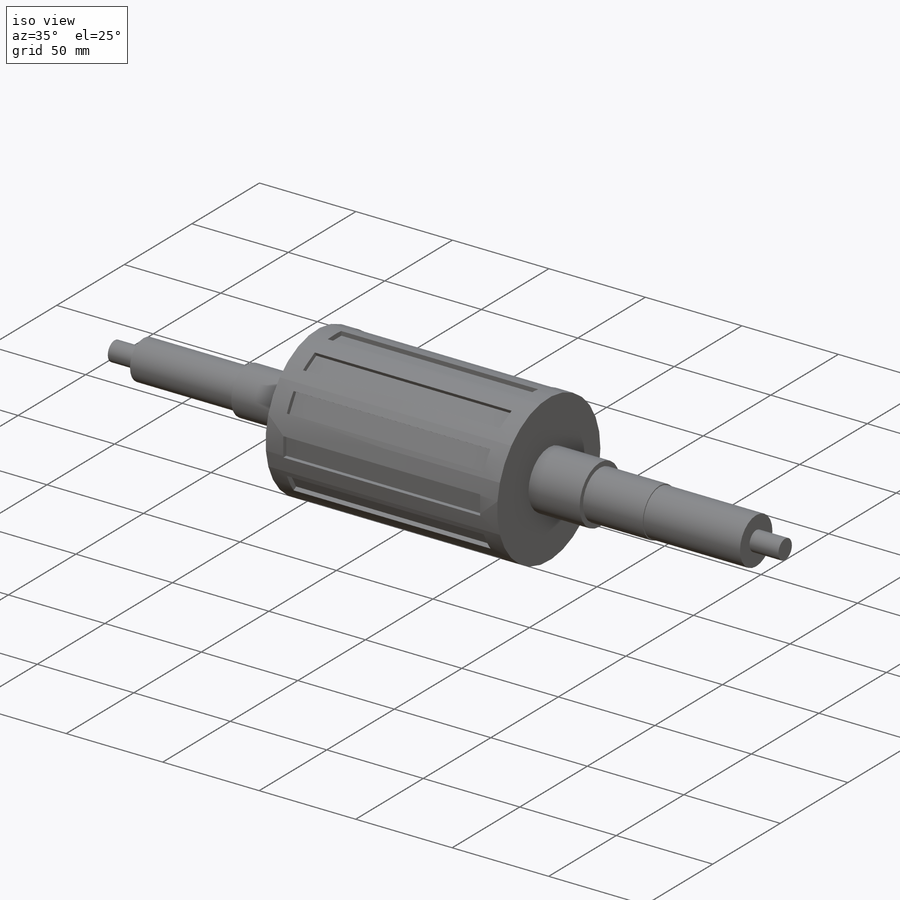
[diagram: iso view]
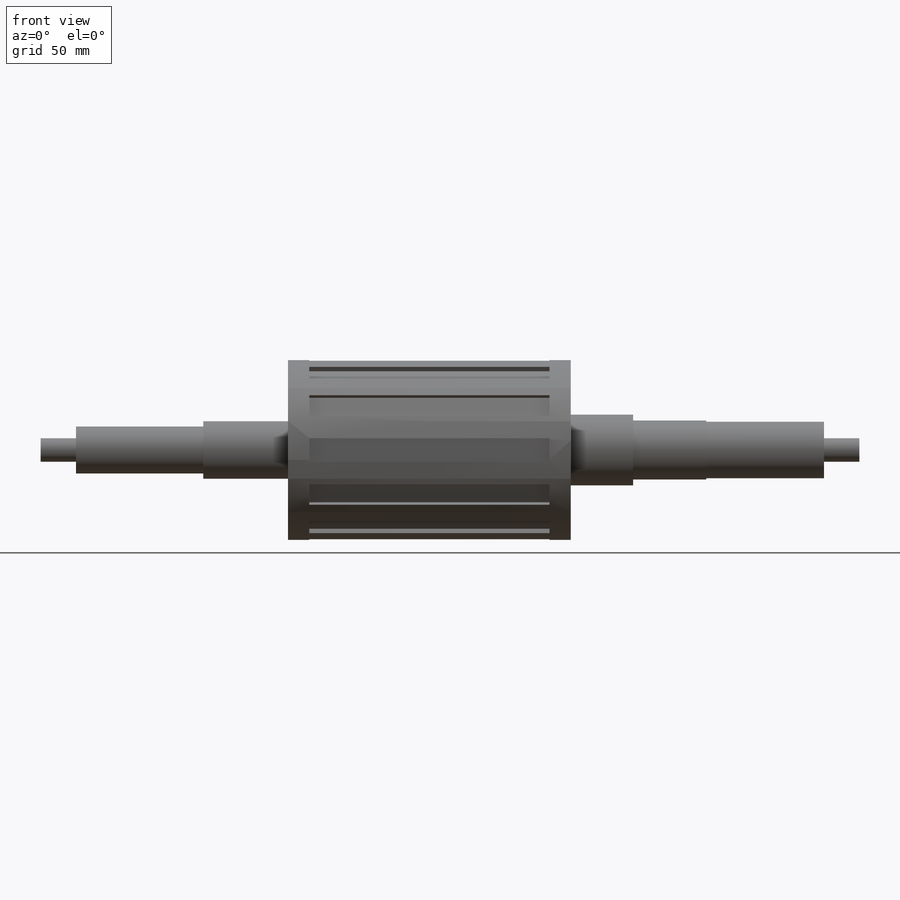
[diagram: front view]
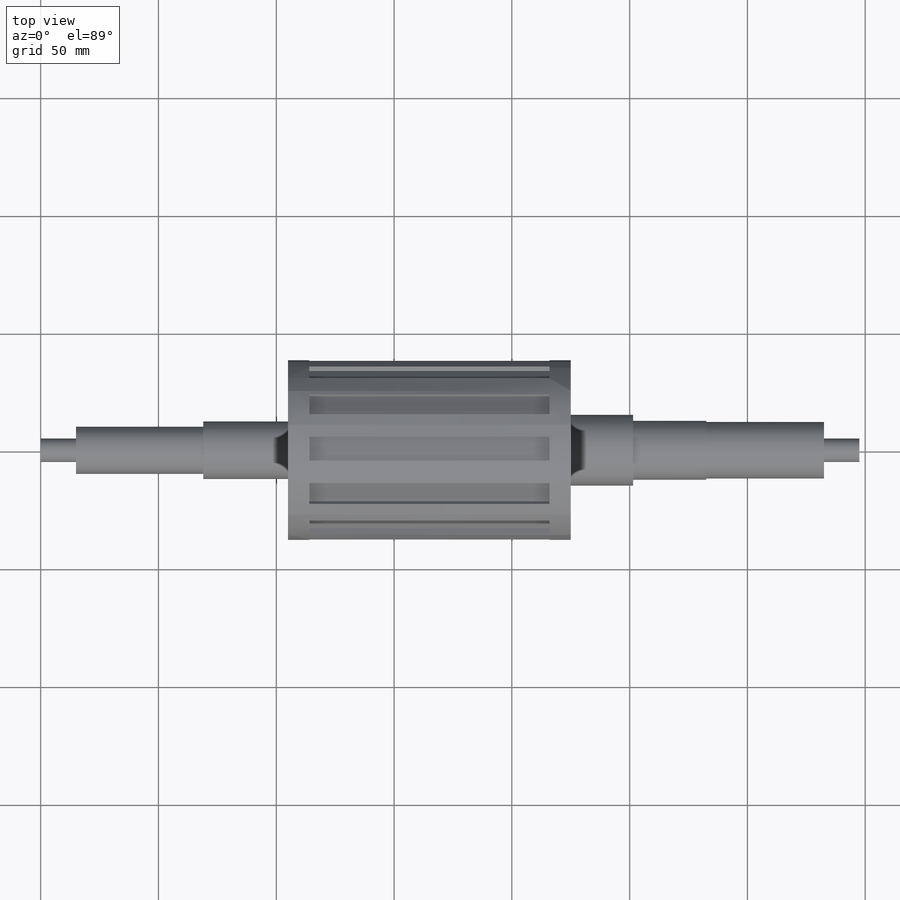
[diagram: top view]
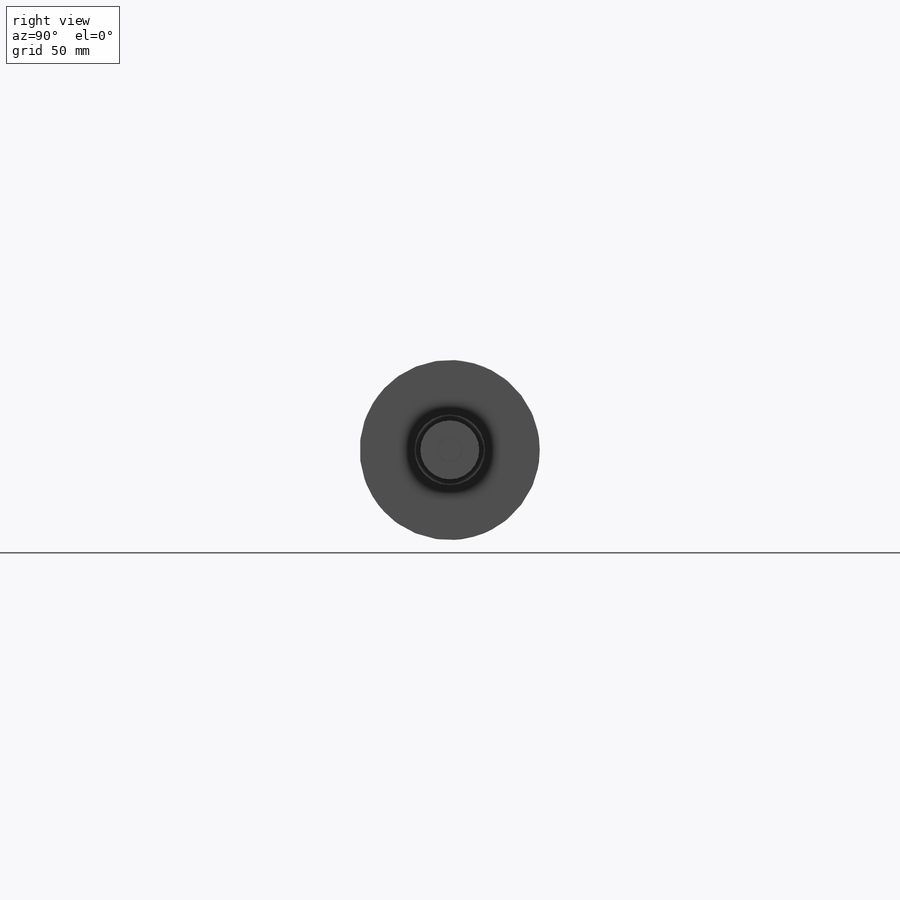
[diagram: right view]
SOLIDWORKS PART (.sldprt)
format: sldprt  version: not decoded by parser v0  size: 216,064 bytes
history: native  units: mm
features: sketch x2, material x1, revolve x1, plane x1, cut_extrude x1, pattern_circular x1 (+13 scaffold rows collapsed)
feature tree (20):
  scaffold x13  (default folders/planes/origin — collapsed)
  material  "Material <not specified>"
  sketch  "Sketch1"  dims[c1.D1=5.0mm c1.D2=15.0mm c1.D3=54.0mm c1.D4=10.0mm c1.D5=12.2mm c1.D6=38.2mm c1.D7=36.0mm c1.D8=120.0mm c1.D9=26.5mm c1.D10=15.0mm c1.D11=31.0mm c1.D12=12.5mm c1.D13=50.0mm c1.D14=12.0mm c1.D15=15.0mm c1.D16=5.0mm c1.D17=15.0mm c2.D10=2.5mm c2.D12=0.5mm c2.D14=7.0mm]
  revolve  "Revolve1"  Angle=360deg
  plane  "Plane1"  Offset=9mm
  sketch  "Sketch2"  dims[D1=2.5mm D2=10.0mm D3=5.0mm]
  cut_extrude  "Cut-Extrude2"  Depth=102mm
  pattern_circular  "CirPattern2"  Count=12 Angle=360deg
decode coverage: 5 of 5 modeling features carry decoded parameters
note: suppression state not decoded; provenance and decode notes live in map.json
